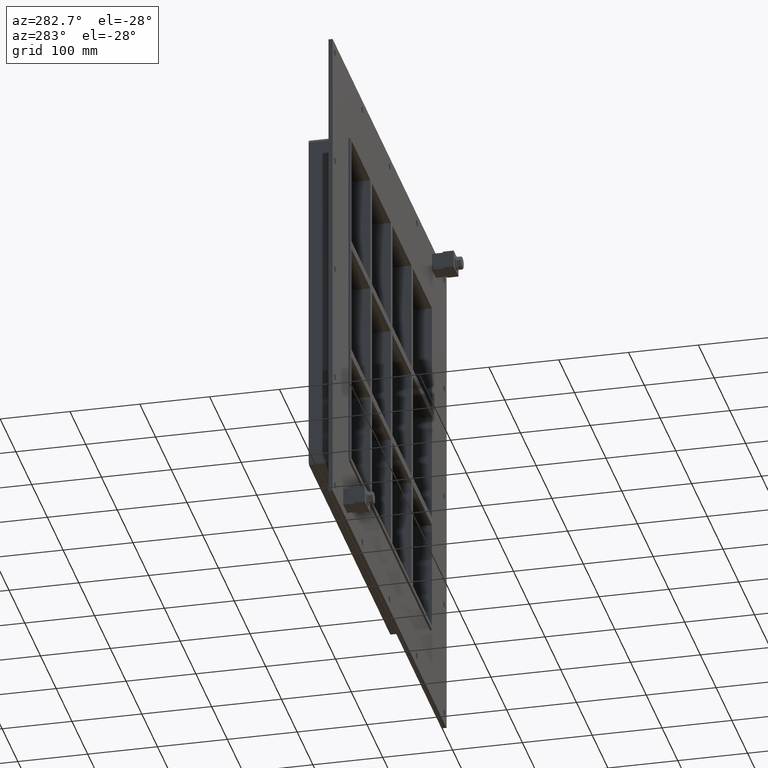
[diagram: clean part render]
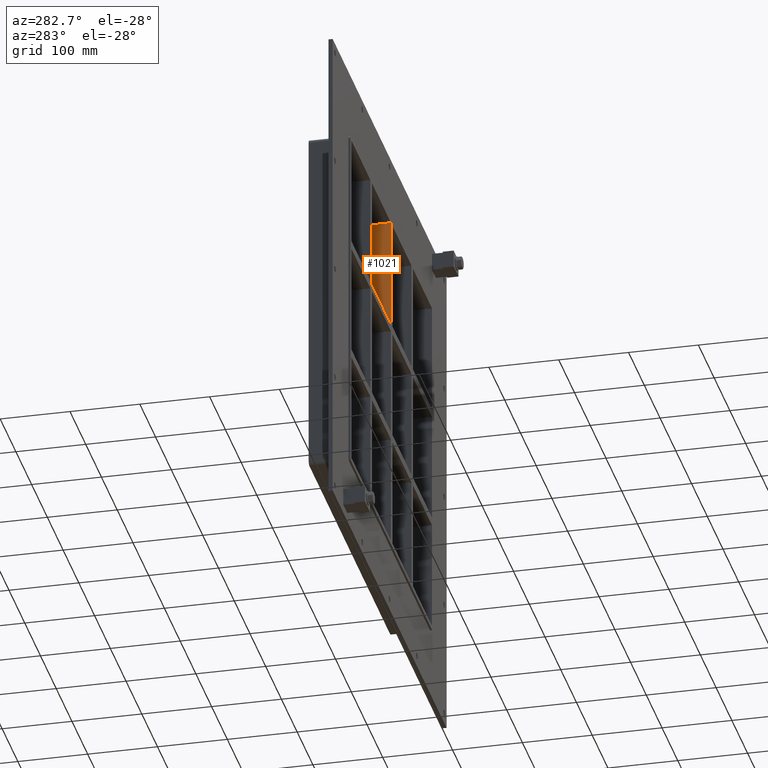
[diagram: same view with one face highlighted and labeled with its STEP entity id]
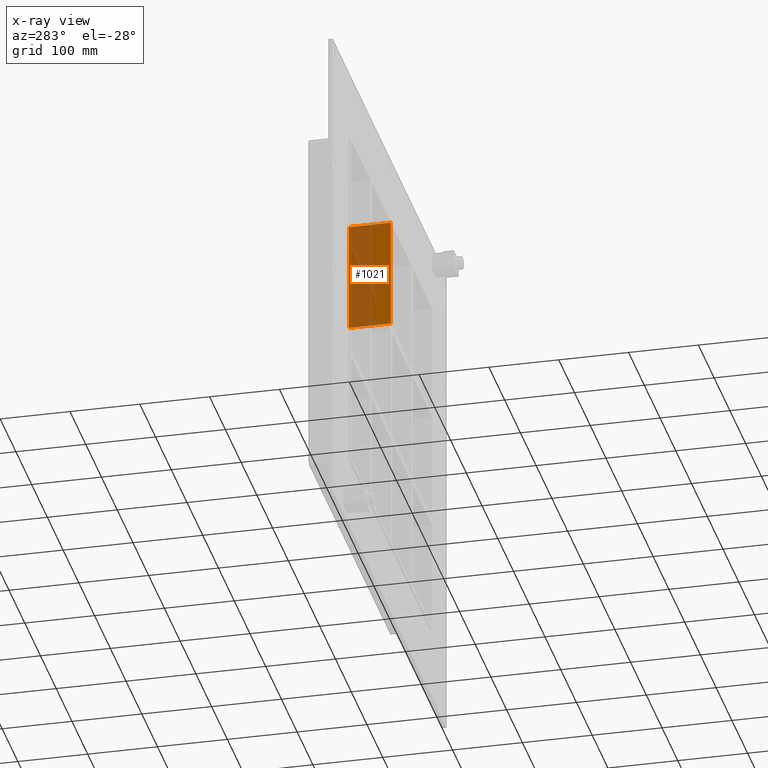
[diagram: x-ray of the same camera — body ghosted, the highlighted face saturated]
A machine part, auxiliary view. The second image highlights one B-rep face of the part: STEP entity #1021.
The next image is the same camera in x-ray: the body ghosted, the highlighted face saturated — about 56% of this face is hidden behind the body in this view.
In plain terms, the highlighted planar face has unit normal (-1, 0, 0).
Its self-contained STEP definition (entity closure, byte-faithful):
#761=CARTESIAN_POINT('',(-4.999999999999076,57.0,91.750000000000938));
#762=VERTEX_POINT('',#761);
#763=CARTESIAN_POINT('',(-4.999999999999076,-3.0,91.750000000000938));
#764=VERTEX_POINT('',#763);
#765=CARTESIAN_POINT('',(-4.999999999999059,57.0,91.750000000000938));
#766=DIRECTION('',(0.0,-1.0,0.0));
#767=VECTOR('',#766,60.0);
#768=LINE('',#765,#767);
#769=EDGE_CURVE('',#762,#764,#768,.T.);
#991=CARTESIAN_POINT('',(-4.999999999999041,-3.0,-251.24999999999997));
#992=DIRECTION('',(-1.0,0.0,0.0));
#993=DIRECTION('',(0.0,0.0,1.0));
#994=AXIS2_PLACEMENT_3D('',#991,#992,#993);
#995=PLANE('',#994);
#996=ORIENTED_EDGE('',*,*,#769,.T.);
#997=CARTESIAN_POINT('',(-4.999999999999076,-3.0,251.25000000000003));
#998=VERTEX_POINT('',#997);
#999=CARTESIAN_POINT('',(-4.999999999999065,-3.0,91.750000000000938));
#1000=DIRECTION('',(0.0,0.0,1.0));
#1001=VECTOR('',#1000,159.49999999999909);
#1002=LINE('',#999,#1001);
#1003=EDGE_CURVE('',#764,#998,#1002,.T.);
#1004=ORIENTED_EDGE('',*,*,#1003,.T.);
#1005=CARTESIAN_POINT('',(-4.999999999999076,57.0,251.25000000000003));
#1006=VERTEX_POINT('',#1005);
#1007=CARTESIAN_POINT('',(-4.999999999999076,57.000000000000007,251.25));
#1008=DIRECTION('',(0.0,-1.0,0.0));
#1009=VECTOR('',#1008,60.000000000000007);
#1010=LINE('',#1007,#1009);
#1011=EDGE_CURVE('',#1006,#998,#1010,.T.);
#1012=ORIENTED_EDGE('',*,*,#1011,.F.);
#1013=CARTESIAN_POINT('',(-4.999999999999065,57.0,91.750000000000938));
#1014=DIRECTION('',(0.0,0.0,1.0));
#1015=VECTOR('',#1014,159.49999999999909);
#1016=LINE('',#1013,#1015);
#1017=EDGE_CURVE('',#762,#1006,#1016,.T.);
#1018=ORIENTED_EDGE('',*,*,#1017,.F.);
#1019=EDGE_LOOP('',(#996,#1004,#1012,#1018));
#1020=FACE_OUTER_BOUND('',#1019,.T.);
#1021=ADVANCED_FACE('',(#1020),#995,.T.);